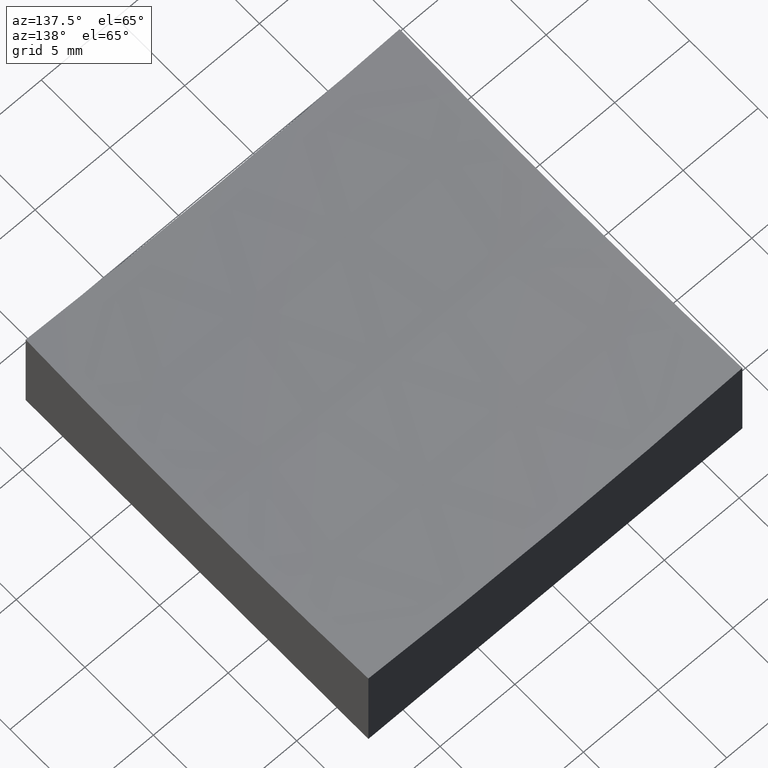
[diagram: clean part render]
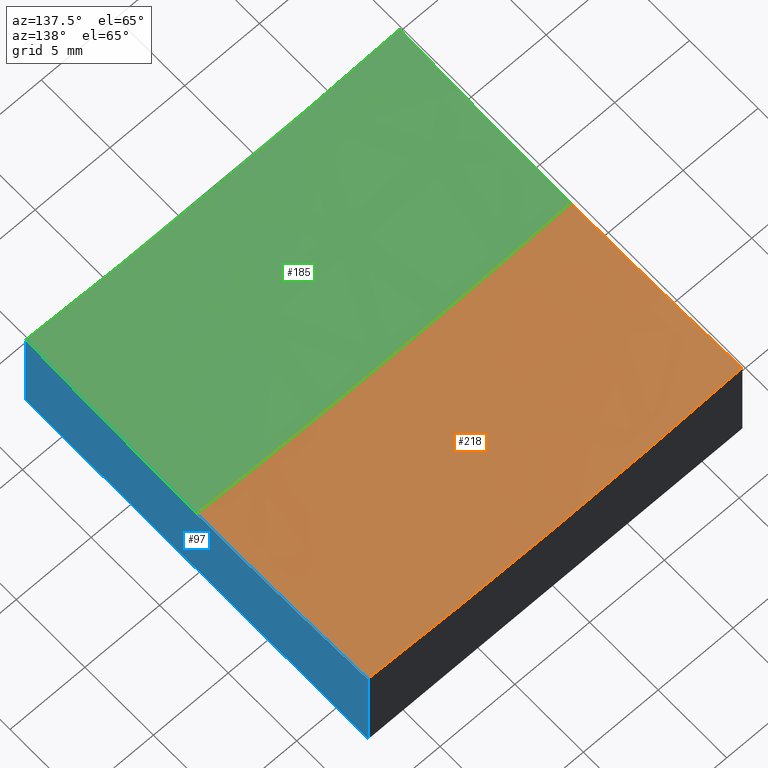
[diagram: same view with three faces highlighted in distinct colors, each labeled with its STEP entity id]
A machine part, auxiliary view with three faces highlighted in distinct colors.
Their STEP definitions:

[orange] entity #218 — the highlighted spherical surface has radius 150 mm.
#10 = DIRECTION ( 'NONE',  ( -1.392622700503039633E-16, 1.000000000000000000, 0.0000000000000000000 ) ) ;
#15 = EDGE_CURVE ( 'NONE', #50, #137, #117, .T. ) ;
#18 = CARTESIAN_POINT ( 'NONE',  ( -12.50000000000000000, 1.530808498934194480E-15, 6.521740711232570931 ) ) ;
#19 = AXIS2_PLACEMENT_3D ( 'NONE', #135, #177, #200 ) ;
#26 = EDGE_CURVE ( 'NONE', #61, #98, #68, .T. ) ;
#27 = CARTESIAN_POINT ( 'NONE',  ( 1.910449006669871151E-14, 0.0000000000000000000, 156.0000000000000000 ) ) ;
#36 = DIRECTION ( 'NONE',  ( 0.0000000000000000000, 0.0000000000000000000, -1.000000000000000000 ) ) ;
#41 = FACE_OUTER_BOUND ( 'NONE', #184, .T. ) ;
#50 = VERTEX_POINT ( 'NONE', #159 ) ;
#58 = AXIS2_PLACEMENT_3D ( 'NONE', #211, #188, #36 ) ;
#60 = CARTESIAN_POINT ( 'NONE',  ( 12.50000000000000000, 12.50000000000000000, 7.045308902337731993 ) ) ;
#61 = VERTEX_POINT ( 'NONE', #60 ) ;
#62 = CARTESIAN_POINT ( 'NONE',  ( -12.49999999999999822, -1.734723475976809461E-15, 156.0000000000000000 ) ) ;
#68 = CIRCLE ( 'NONE', #19, 149.4782592887674184 ) ;
#77 = CARTESIAN_POINT ( 'NONE',  ( 12.50000000000000178, -9.629649721936179265E-32, 6.521740711232570931 ) ) ;
#82 = VERTEX_POINT ( 'NONE', #77 ) ;
#90 = CIRCLE ( 'NONE', #109, 149.4782592887674184 ) ;
#91 = EDGE_CURVE ( 'NONE', #82, #61, #154, .T. ) ;
#92 = SPHERICAL_SURFACE ( 'NONE', #158, 149.9999999999999716 ) ;
#93 = DIRECTION ( 'NONE',  ( -0.0000000000000000000, 1.000000000000000000, 0.0000000000000000000 ) ) ;
#95 = DIRECTION ( 'NONE',  ( 1.224646799147353207E-16, 1.000000000000000000, 3.162935598259867280E-33 ) ) ;
#96 = DIRECTION ( 'NONE',  ( -1.000000000000000000, 1.224646799147353207E-16, 0.0000000000000000000 ) ) ;
#98 = VERTEX_POINT ( 'NONE', #234 ) ;
#109 = AXIS2_PLACEMENT_3D ( 'NONE', #62, #246, #10 ) ;
#113 = DIRECTION ( 'NONE',  ( 1.000000000000000000, 1.387778780781445676E-16, -0.0000000000000000000 ) ) ;
#114 = EDGE_CURVE ( 'NONE', #50, #82, #130, .T. ) ;
#117 = CIRCLE ( 'NONE', #144, 149.9999999999999716 ) ;
#118 = ORIENTED_EDGE ( 'NONE', *, *, #26, .T. ) ;
#128 = DIRECTION ( 'NONE',  ( 1.000000000000000000, 0.0000000000000000000, 0.0000000000000000000 ) ) ;
#130 = CIRCLE ( 'NONE', #58, 149.9999999999999716 ) ;
#135 = CARTESIAN_POINT ( 'NONE',  ( 1.910449006669871151E-14, 12.50000000000000000, 156.0000000000000000 ) ) ;
#137 = VERTEX_POINT ( 'NONE', #18 ) ;
#144 = AXIS2_PLACEMENT_3D ( 'NONE', #27, #95, #96 ) ;
#154 = CIRCLE ( 'NONE', #217, 149.4782592887674184 ) ;
#156 = CARTESIAN_POINT ( 'NONE',  ( 12.50000000000000178, 1.734723475976804728E-15, 156.0000000000000000 ) ) ;
#158 = AXIS2_PLACEMENT_3D ( 'NONE', #238, #93, #128 ) ;
#159 = CARTESIAN_POINT ( 'NONE',  ( 3.216344043384816387E-14, 0.0000000000000000000, 6.000000000000032863 ) ) ;
#163 = ORIENTED_EDGE ( 'NONE', *, *, #114, .T. ) ;
#165 = ORIENTED_EDGE ( 'NONE', *, *, #91, .T. ) ;
#176 = EDGE_CURVE ( 'NONE', #137, #98, #90, .T. ) ;
#177 = DIRECTION ( 'NONE',  ( 0.0000000000000000000, 1.000000000000000000, 0.0000000000000000000 ) ) ;
#181 = ORIENTED_EDGE ( 'NONE', *, *, #176, .F. ) ;
#184 = EDGE_LOOP ( 'NONE', ( #227, #163, #165, #118, #181 ) ) ;
#188 = DIRECTION ( 'NONE',  ( 0.0000000000000000000, -1.000000000000000000, 0.0000000000000000000 ) ) ;
#200 = DIRECTION ( 'NONE',  ( 0.0000000000000000000, 0.0000000000000000000, 1.000000000000000000 ) ) ;
#201 = DIRECTION ( 'NONE',  ( -1.392622700503039633E-16, 1.000000000000000000, 0.0000000000000000000 ) ) ;
#211 = CARTESIAN_POINT ( 'NONE',  ( 1.910449006669871151E-14, 0.0000000000000000000, 156.0000000000000000 ) ) ;
#217 = AXIS2_PLACEMENT_3D ( 'NONE', #156, #113, #201 ) ;
#218 = ADVANCED_FACE ( 'NONE', ( #41 ), #92, .F. ) ;
#227 = ORIENTED_EDGE ( 'NONE', *, *, #15, .F. ) ;
#234 = CARTESIAN_POINT ( 'NONE',  ( -12.50000000000000000, 12.50000000000000000, 7.045308902337731993 ) ) ;
#238 = CARTESIAN_POINT ( 'NONE',  ( 1.910449006669871151E-14, 0.0000000000000000000, 156.0000000000000000 ) ) ;
#246 = DIRECTION ( 'NONE',  ( 1.000000000000000000, 1.387778780781445676E-16, -0.0000000000000000000 ) ) ;

[blue] entity #97 — the highlighted planar face has unit normal (1, 0, -0).
#25 = CARTESIAN_POINT ( 'NONE',  ( 12.50000000000000355, -12.50000000000000000, 7.045308902337731993 ) ) ;
#28 = ORIENTED_EDGE ( 'NONE', *, *, #91, .F. ) ;
#39 = VECTOR ( 'NONE', #122, 1000.000000000000000 ) ;
#59 = PLANE ( 'NONE',  #99 ) ;
#60 = CARTESIAN_POINT ( 'NONE',  ( 12.50000000000000000, 12.50000000000000000, 7.045308902337731993 ) ) ;
#61 = VERTEX_POINT ( 'NONE', #60 ) ;
#65 = ORIENTED_EDGE ( 'NONE', *, *, #104, .F. ) ;
#66 = CARTESIAN_POINT ( 'NONE',  ( 12.50000000000000000, 12.50000000000000000, 20.00000000000000000 ) ) ;
#77 = CARTESIAN_POINT ( 'NONE',  ( 12.50000000000000178, -9.629649721936179265E-32, 6.521740711232570931 ) ) ;
#82 = VERTEX_POINT ( 'NONE', #77 ) ;
#85 = VERTEX_POINT ( 'NONE', #25 ) ;
#91 = EDGE_CURVE ( 'NONE', #82, #61, #154, .T. ) ;
#97 = ADVANCED_FACE ( 'NONE', ( #241 ), #59, .T. ) ;
#99 = AXIS2_PLACEMENT_3D ( 'NONE', #133, #221, #190 ) ;
#104 = EDGE_CURVE ( 'NONE', #85, #82, #170, .T. ) ;
#111 = CARTESIAN_POINT ( 'NONE',  ( 12.50000000000000000, 12.50000000000000000, 0.0000000000000000000 ) ) ;
#113 = DIRECTION ( 'NONE',  ( 1.000000000000000000, 1.387778780781445676E-16, -0.0000000000000000000 ) ) ;
#116 = ORIENTED_EDGE ( 'NONE', *, *, #157, .F. ) ;
#122 = DIRECTION ( 'NONE',  ( -0.0000000000000000000, -0.0000000000000000000, -1.000000000000000000 ) ) ;
#124 = CARTESIAN_POINT ( 'NONE',  ( 12.50000000000000178, 1.734723475976804728E-15, 156.0000000000000000 ) ) ;
#127 = VECTOR ( 'NONE', #237, 1000.000000000000000 ) ;
#133 = CARTESIAN_POINT ( 'NONE',  ( 12.50000000000000000, 12.50000000000000000, 20.00000000000000000 ) ) ;
#136 = EDGE_LOOP ( 'NONE', ( #65, #179, #161, #116, #28 ) ) ;
#145 = DIRECTION ( 'NONE',  ( -1.392622700503039633E-16, 1.000000000000000000, 0.0000000000000000000 ) ) ;
#152 = LINE ( 'NONE', #111, #127 ) ;
#154 = CIRCLE ( 'NONE', #217, 149.4782592887674184 ) ;
#156 = CARTESIAN_POINT ( 'NONE',  ( 12.50000000000000178, 1.734723475976804728E-15, 156.0000000000000000 ) ) ;
#157 = EDGE_CURVE ( 'NONE', #61, #206, #225, .T. ) ;
#161 = ORIENTED_EDGE ( 'NONE', *, *, #235, .F. ) ;
#170 = CIRCLE ( 'NONE', #251, 149.4782592887674184 ) ;
#173 = LINE ( 'NONE', #191, #39 ) ;
#175 = CARTESIAN_POINT ( 'NONE',  ( 12.50000000000000355, -12.50000000000000000, 0.0000000000000000000 ) ) ;
#179 = ORIENTED_EDGE ( 'NONE', *, *, #247, .T. ) ;
#190 = DIRECTION ( 'NONE',  ( -1.387778780781445676E-16, 1.000000000000000000, 0.0000000000000000000 ) ) ;
#191 = CARTESIAN_POINT ( 'NONE',  ( 12.50000000000000355, -12.50000000000000000, 20.00000000000000000 ) ) ;
#201 = DIRECTION ( 'NONE',  ( -1.392622700503039633E-16, 1.000000000000000000, 0.0000000000000000000 ) ) ;
#204 = DIRECTION ( 'NONE',  ( -0.0000000000000000000, -0.0000000000000000000, -1.000000000000000000 ) ) ;
#206 = VERTEX_POINT ( 'NONE', #215 ) ;
#213 = DIRECTION ( 'NONE',  ( 1.000000000000000000, 1.387778780781445676E-16, -0.0000000000000000000 ) ) ;
#215 = CARTESIAN_POINT ( 'NONE',  ( 12.50000000000000000, 12.50000000000000000, 0.0000000000000000000 ) ) ;
#217 = AXIS2_PLACEMENT_3D ( 'NONE', #156, #113, #201 ) ;
#219 = VECTOR ( 'NONE', #204, 1000.000000000000000 ) ;
#221 = DIRECTION ( 'NONE',  ( 1.000000000000000000, 1.387778780781445676E-16, -0.0000000000000000000 ) ) ;
#225 = LINE ( 'NONE', #66, #219 ) ;
#235 = EDGE_CURVE ( 'NONE', #206, #245, #152, .T. ) ;
#237 = DIRECTION ( 'NONE',  ( 1.387778780781445676E-16, -1.000000000000000000, 0.0000000000000000000 ) ) ;
#241 = FACE_OUTER_BOUND ( 'NONE', #136, .T. ) ;
#245 = VERTEX_POINT ( 'NONE', #175 ) ;
#247 = EDGE_CURVE ( 'NONE', #85, #245, #173, .T. ) ;
#251 = AXIS2_PLACEMENT_3D ( 'NONE', #124, #213, #145 ) ;

[green] entity #185 — the highlighted spherical surface has radius 150 mm.
#7 = AXIS2_PLACEMENT_3D ( 'NONE', #207, #103, #183 ) ;
#13 = DIRECTION ( 'NONE',  ( 0.0000000000000000000, 1.000000000000000000, 0.0000000000000000000 ) ) ;
#14 = VERTEX_POINT ( 'NONE', #80 ) ;
#15 = EDGE_CURVE ( 'NONE', #50, #137, #117, .T. ) ;
#18 = CARTESIAN_POINT ( 'NONE',  ( -12.50000000000000000, 1.530808498934194480E-15, 6.521740711232570931 ) ) ;
#25 = CARTESIAN_POINT ( 'NONE',  ( 12.50000000000000355, -12.50000000000000000, 7.045308902337731993 ) ) ;
#27 = CARTESIAN_POINT ( 'NONE',  ( 1.910449006669871151E-14, 0.0000000000000000000, 156.0000000000000000 ) ) ;
#36 = DIRECTION ( 'NONE',  ( 0.0000000000000000000, 0.0000000000000000000, -1.000000000000000000 ) ) ;
#47 = ORIENTED_EDGE ( 'NONE', *, *, #197, .F. ) ;
#48 = ORIENTED_EDGE ( 'NONE', *, *, #114, .F. ) ;
#49 = AXIS2_PLACEMENT_3D ( 'NONE', #54, #168, #87 ) ;
#50 = VERTEX_POINT ( 'NONE', #159 ) ;
#54 = CARTESIAN_POINT ( 'NONE',  ( -12.49999999999999822, -1.734723475976809461E-15, 156.0000000000000000 ) ) ;
#58 = AXIS2_PLACEMENT_3D ( 'NONE', #211, #188, #36 ) ;
#77 = CARTESIAN_POINT ( 'NONE',  ( 12.50000000000000178, -9.629649721936179265E-32, 6.521740711232570931 ) ) ;
#80 = CARTESIAN_POINT ( 'NONE',  ( -12.49999999999999645, -12.50000000000000000, 7.045308902337731993 ) ) ;
#82 = VERTEX_POINT ( 'NONE', #77 ) ;
#84 = DIRECTION ( 'NONE',  ( 0.0000000000000000000, 0.0000000000000000000, 1.000000000000000000 ) ) ;
#85 = VERTEX_POINT ( 'NONE', #25 ) ;
#87 = DIRECTION ( 'NONE',  ( -1.392622700503039633E-16, 1.000000000000000000, 0.0000000000000000000 ) ) ;
#88 = CIRCLE ( 'NONE', #49, 149.4782592887674184 ) ;
#95 = DIRECTION ( 'NONE',  ( 1.224646799147353207E-16, 1.000000000000000000, 3.162935598259867280E-33 ) ) ;
#96 = DIRECTION ( 'NONE',  ( -1.000000000000000000, 1.224646799147353207E-16, 0.0000000000000000000 ) ) ;
#103 = DIRECTION ( 'NONE',  ( -0.0000000000000000000, 1.000000000000000000, 0.0000000000000000000 ) ) ;
#104 = EDGE_CURVE ( 'NONE', #85, #82, #170, .T. ) ;
#114 = EDGE_CURVE ( 'NONE', #50, #82, #130, .T. ) ;
#117 = CIRCLE ( 'NONE', #144, 149.9999999999999716 ) ;
#119 = CARTESIAN_POINT ( 'NONE',  ( 1.910449006669871151E-14, -12.50000000000000000, 156.0000000000000000 ) ) ;
#124 = CARTESIAN_POINT ( 'NONE',  ( 12.50000000000000178, 1.734723475976804728E-15, 156.0000000000000000 ) ) ;
#130 = CIRCLE ( 'NONE', #58, 149.9999999999999716 ) ;
#137 = VERTEX_POINT ( 'NONE', #18 ) ;
#139 = SPHERICAL_SURFACE ( 'NONE', #7, 149.9999999999999716 ) ;
#143 = EDGE_CURVE ( 'NONE', #14, #137, #88, .T. ) ;
#144 = AXIS2_PLACEMENT_3D ( 'NONE', #27, #95, #96 ) ;
#145 = DIRECTION ( 'NONE',  ( -1.392622700503039633E-16, 1.000000000000000000, 0.0000000000000000000 ) ) ;
#159 = CARTESIAN_POINT ( 'NONE',  ( 3.216344043384816387E-14, 0.0000000000000000000, 6.000000000000032863 ) ) ;
#162 = FACE_OUTER_BOUND ( 'NONE', #244, .T. ) ;
#168 = DIRECTION ( 'NONE',  ( 1.000000000000000000, 1.387778780781445676E-16, -0.0000000000000000000 ) ) ;
#170 = CIRCLE ( 'NONE', #251, 149.4782592887674184 ) ;
#183 = DIRECTION ( 'NONE',  ( 1.000000000000000000, 0.0000000000000000000, 0.0000000000000000000 ) ) ;
#185 = ADVANCED_FACE ( 'NONE', ( #162 ), #139, .F. ) ;
#188 = DIRECTION ( 'NONE',  ( 0.0000000000000000000, -1.000000000000000000, 0.0000000000000000000 ) ) ;
#197 = EDGE_CURVE ( 'NONE', #85, #14, #208, .T. ) ;
#207 = CARTESIAN_POINT ( 'NONE',  ( 1.910449006669871151E-14, 0.0000000000000000000, 156.0000000000000000 ) ) ;
#208 = CIRCLE ( 'NONE', #240, 149.4782592887674184 ) ;
#211 = CARTESIAN_POINT ( 'NONE',  ( 1.910449006669871151E-14, 0.0000000000000000000, 156.0000000000000000 ) ) ;
#213 = DIRECTION ( 'NONE',  ( 1.000000000000000000, 1.387778780781445676E-16, -0.0000000000000000000 ) ) ;
#224 = ORIENTED_EDGE ( 'NONE', *, *, #15, .T. ) ;
#240 = AXIS2_PLACEMENT_3D ( 'NONE', #119, #13, #84 ) ;
#243 = ORIENTED_EDGE ( 'NONE', *, *, #104, .T. ) ;
#244 = EDGE_LOOP ( 'NONE', ( #48, #224, #248, #47, #243 ) ) ;
#248 = ORIENTED_EDGE ( 'NONE', *, *, #143, .F. ) ;
#251 = AXIS2_PLACEMENT_3D ( 'NONE', #124, #213, #145 ) ;